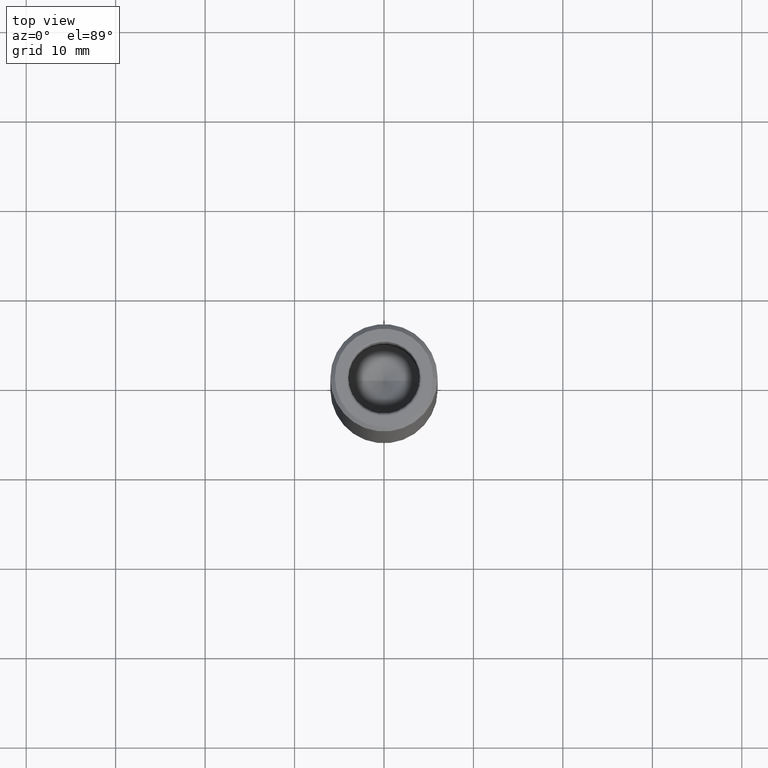
[diagram: clean part render]
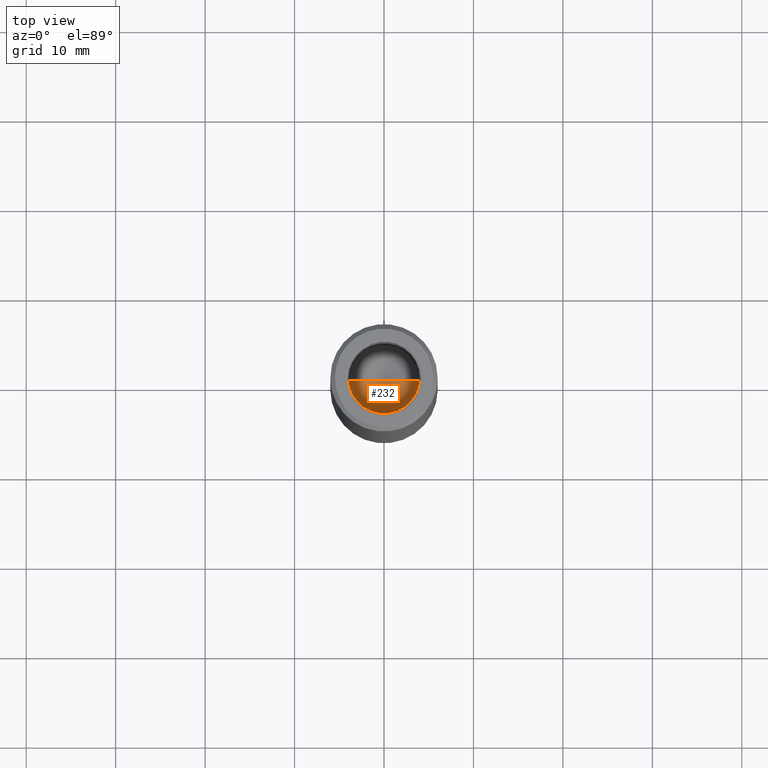
[diagram: same view with one face highlighted and labeled with its STEP entity id]
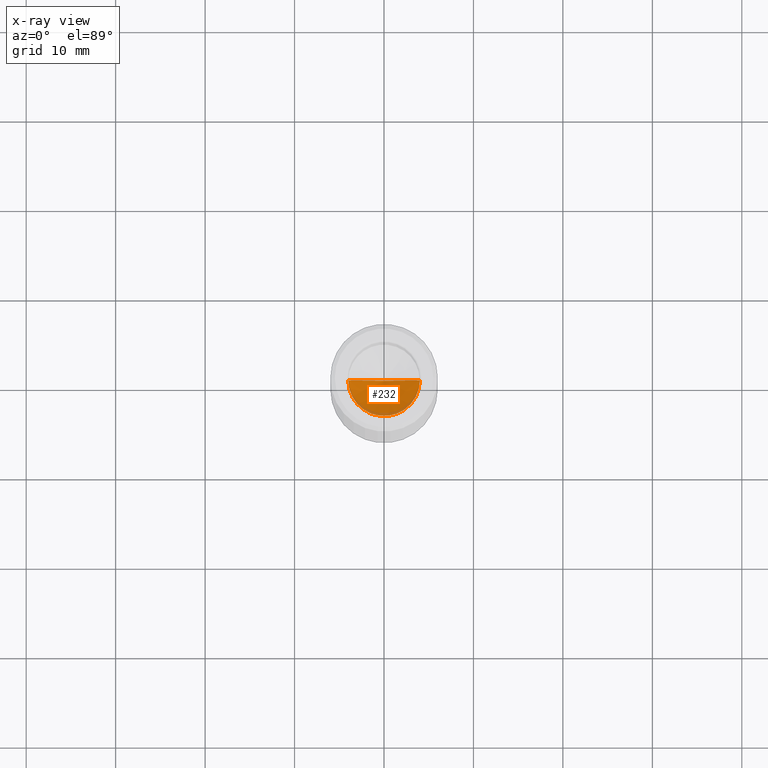
[diagram: x-ray of the same camera — body ghosted, the highlighted face saturated]
A machine part, top view. The second image highlights one B-rep face of the part: STEP entity #232.
The next image is the same camera in x-ray: the body ghosted, the highlighted face saturated — about 9% of this face is hidden behind the body in this view.
In plain terms, the highlighted conical surface has half-angle 59 deg.
Its self-contained STEP definition (entity closure, byte-faithful):
#46 = DIRECTION ( 'NONE',  ( 1.000000000000000000, 0.000000000000000000, 0.000000000000000000 ) ) ;
#51 = CARTESIAN_POINT ( 'NONE',  ( 0.000000000000000000, 0.000000000000000000, -17.00000000000000000 ) ) ;
#63 = CARTESIAN_POINT ( 'NONE',  ( 0.000000000000000000, 0.000000000000000000, -17.00000000000000000 ) ) ;
#75 = VECTOR ( 'NONE', #582, 1000.000000000000000 ) ;
#95 = EDGE_CURVE ( 'NONE', #157, #605, #231, .T. ) ;
#97 = FACE_OUTER_BOUND ( 'NONE', #230, .T. ) ;
#113 = DIRECTION ( 'NONE',  ( 1.000000000000000000, 0.000000000000000000, 0.000000000000000000 ) ) ;
#157 = VERTEX_POINT ( 'NONE', #635 ) ;
#165 = VERTEX_POINT ( 'NONE', #549 ) ;
#200 = DIRECTION ( 'NONE',  ( -0.8571673007021118895, 1.049727191138618079E-16, 0.5150380749100549327 ) ) ;
#230 = EDGE_LOOP ( 'NONE', ( #513, #559, #459 ) ) ;
#231 = LINE ( 'NONE', #523, #75 ) ;
#232 = ADVANCED_FACE ( 'NONE', ( #97 ), #382, .F. ) ;
#271 = AXIS2_PLACEMENT_3D ( 'NONE', #63, #606, #113 ) ;
#288 = DIRECTION ( 'NONE',  ( -0.000000000000000000, -0.000000000000000000, 1.000000000000000000 ) ) ;
#289 = LINE ( 'NONE', #446, #454 ) ;
#337 = CIRCLE ( 'NONE', #271, 3.999999999999995559 ) ;
#382 = CONICAL_SURFACE ( 'NONE', #581, 3.999999999999995559, 1.029744258676653645 ) ;
#406 = CARTESIAN_POINT ( 'NONE',  ( 3.999999999999995559, 0.000000000000000000, -17.00000000000000000 ) ) ;
#446 = CARTESIAN_POINT ( 'NONE',  ( -3.999999999999995559, 4.898587196589407898E-16, -17.00000000000000000 ) ) ;
#454 = VECTOR ( 'NONE', #200, 1000.000000000000000 ) ;
#459 = ORIENTED_EDGE ( 'NONE', *, *, #588, .T. ) ;
#513 = ORIENTED_EDGE ( 'NONE', *, *, #95, .F. ) ;
#523 = CARTESIAN_POINT ( 'NONE',  ( 3.999999999999995559, 0.000000000000000000, -17.00000000000000000 ) ) ;
#533 = EDGE_CURVE ( 'NONE', #157, #165, #289, .T. ) ;
#549 = CARTESIAN_POINT ( 'NONE',  ( -3.999999999999995559, 4.898587196589407898E-16, -17.00000000000000000 ) ) ;
#559 = ORIENTED_EDGE ( 'NONE', *, *, #533, .T. ) ;
#581 = AXIS2_PLACEMENT_3D ( 'NONE', #51, #288, #46 ) ;
#582 = DIRECTION ( 'NONE',  ( 0.8571673007021118895, 0.000000000000000000, 0.5150380749100549327 ) ) ;
#588 = EDGE_CURVE ( 'NONE', #165, #605, #337, .T. ) ;
#605 = VERTEX_POINT ( 'NONE', #406 ) ;
#606 = DIRECTION ( 'NONE',  ( -0.000000000000000000, -0.000000000000000000, 1.000000000000000000 ) ) ;
#635 = CARTESIAN_POINT ( 'NONE',  ( -4.827031923828040939E-15, 0.000000000000000000, -19.40344247611024286 ) ) ;